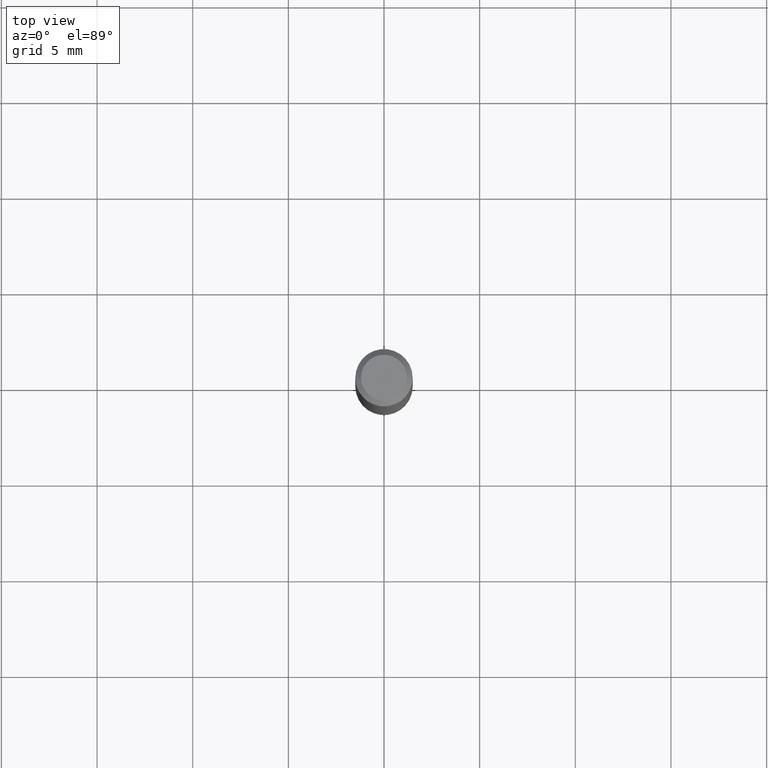
[diagram: clean part render]
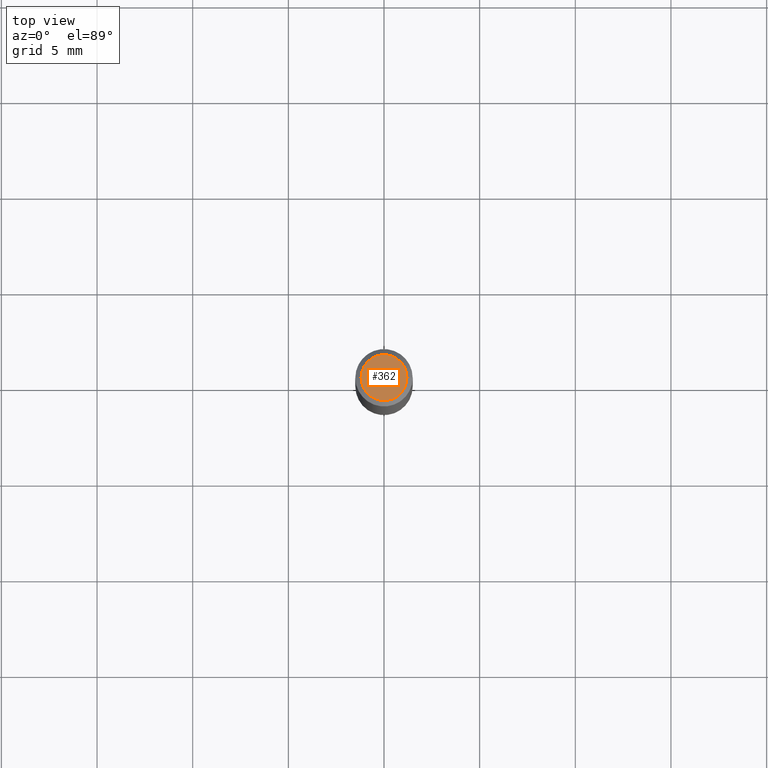
[diagram: same view with one face highlighted and labeled with its STEP entity id]
A machine part, top view. The second image highlights one B-rep face of the part: STEP entity #362.
In plain terms, the highlighted planar face has unit normal (0, -0, -1).
Its self-contained STEP definition (entity closure, byte-faithful):
#16 = CARTESIAN_POINT ( 'NONE',  ( -0.04724000000000000421, 3.504923541997677355E-16, -3.380025165670481712E-19 ) ) ;
#31 = EDGE_CURVE ( 'NONE', #220, #132, #301, .T. ) ;
#32 = DIRECTION ( 'NONE',  ( 1.000000000000000000, -6.982962677686266711E-15, 4.876185090822587894E-29 ) ) ;
#58 = CARTESIAN_POINT ( 'NONE',  ( 8.265746106709734507E-48, -1.180129479067563789E-33, -3.380025165646692144E-19 ) ) ;
#80 = FACE_OUTER_BOUND ( 'NONE', #303, .T. ) ;
#101 = ORIENTED_EDGE ( 'NONE', *, *, #31, .T. ) ;
#131 = DIRECTION ( 'NONE',  ( 1.000000000000000000, -6.982962677686266711E-15, 4.876185090822587894E-29 ) ) ;
#132 = VERTEX_POINT ( 'NONE', #16 ) ;
#148 = CARTESIAN_POINT ( 'NONE',  ( 0.04724000000000000421, -3.852183633974369345E-16, -3.380025165621689721E-19 ) ) ;
#150 = DIRECTION ( 'NONE',  ( -2.445468806185136597E-29, 3.491481338843145583E-15, 1.000000000000000000 ) ) ;
#202 = CARTESIAN_POINT ( 'NONE',  ( 4.132873053354867254E-48, -5.900647395337818946E-34, -1.690012582823346072E-19 ) ) ;
#220 = VERTEX_POINT ( 'NONE', #148 ) ;
#222 = ORIENTED_EDGE ( 'NONE', *, *, #279, .T. ) ;
#232 = CARTESIAN_POINT ( 'NONE',  ( 8.265746106709734507E-48, -1.180129479067563789E-33, -3.380025165646692144E-19 ) ) ;
#246 = AXIS2_PLACEMENT_3D ( 'NONE', #58, #373, #131 ) ;
#248 = DIRECTION ( 'NONE',  ( 2.438088387897960049E-29, -3.491481338843145188E-15, -1.000000000000000000 ) ) ;
#279 = EDGE_CURVE ( 'NONE', #132, #220, #363, .T. ) ;
#301 = CIRCLE ( 'NONE', #246, 0.04724000000000000421 ) ;
#303 = EDGE_LOOP ( 'NONE', ( #222, #101 ) ) ;
#362 = ADVANCED_FACE ( 'NONE', ( #80 ), #431, .F. ) ;
#363 = CIRCLE ( 'NONE', #393, 0.04724000000000000421 ) ;
#373 = DIRECTION ( 'NONE',  ( -2.445468806185136597E-29, 3.491481338843145583E-15, 1.000000000000000000 ) ) ;
#393 = AXIS2_PLACEMENT_3D ( 'NONE', #232, #150, #32 ) ;
#431 = PLANE ( 'NONE',  #474 ) ;
#435 = DIRECTION ( 'NONE',  ( -1.000000000000000000, 6.982962677686265922E-15, -4.876176775795935793E-29 ) ) ;
#474 = AXIS2_PLACEMENT_3D ( 'NONE', #202, #248, #435 ) ;